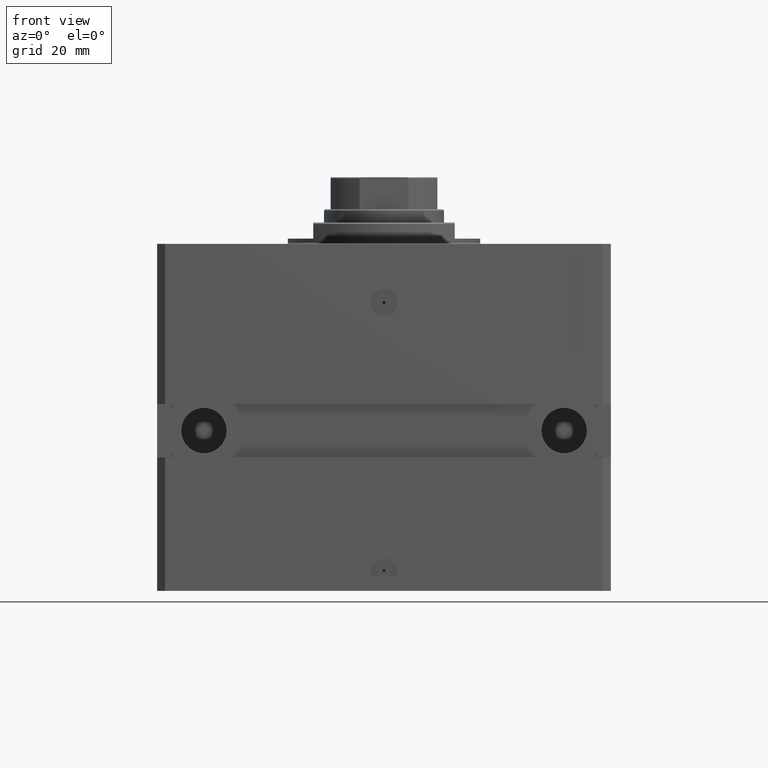
[diagram: clean part render]
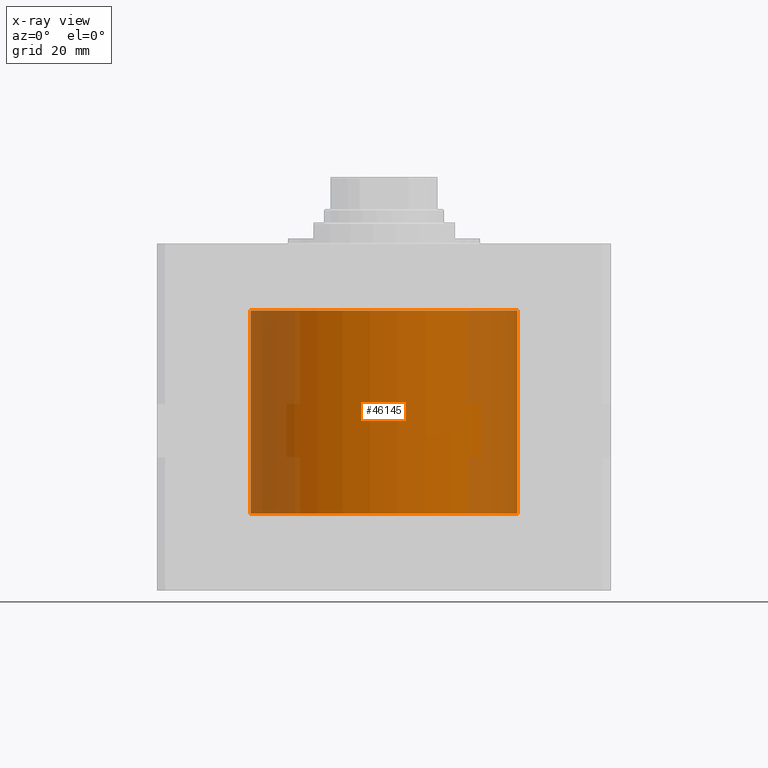
[diagram: x-ray — body ghosted, one internal face saturated and labeled with its STEP entity id]
A machine part, front view, then the same camera in x-ray: the body is ghosted and one INTERNAL B-rep face — a face not visible from any outside direction — is saturated and labeled: STEP entity #46145.
In plain terms, the highlighted cylindrical surface (partial cylindrical patch) has radius 50 mm, axis along (0, 0, 1).
Its self-contained STEP definition (entity closure, byte-faithful):
#131 = ORIENTED_EDGE ( 'NONE', *, *, #37198, .F. ) ;
#228 = CYLINDRICAL_SURFACE ( 'NONE', #11706, 50.00000000000000000 ) ;
#304 = DIRECTION ( 'NONE',  ( 1.000000000000000000, 0.000000000000000000, 0.000000000000000000 ) ) ;
#459 = FACE_OUTER_BOUND ( 'NONE', #5209, .T. ) ;
#972 = CIRCLE ( 'NONE', #36170, 50.00000000000000000 ) ;
#2208 = VERTEX_POINT ( 'NONE', #47808 ) ;
#3699 = ORIENTED_EDGE ( 'NONE', *, *, #46278, .F. ) ;
#3908 = CARTESIAN_POINT ( 'NONE',  ( 0.000000000000000000, 0.000000000000000000, -101.0999999999999943 ) ) ;
#4847 = CARTESIAN_POINT ( 'NONE',  ( 50.00000000000000000, 0.000000000000000000, -101.0999999999999943 ) ) ;
#5209 = EDGE_LOOP ( 'NONE', ( #131, #38452, #43548, #3699 ) ) ;
#7423 = VERTEX_POINT ( 'NONE', #22820 ) ;
#7826 = CARTESIAN_POINT ( 'NONE',  ( -50.00000000000000000, 6.123233995736764507E-15, -101.0999999999999943 ) ) ;
#11706 = AXIS2_PLACEMENT_3D ( 'NONE', #3908, #22030, #25700 ) ;
#14081 = VECTOR ( 'NONE', #19794, 1000.000000000000000 ) ;
#16238 = AXIS2_PLACEMENT_3D ( 'NONE', #44411, #43932, #17973 ) ;
#17386 = VERTEX_POINT ( 'NONE', #18013 ) ;
#17743 = EDGE_CURVE ( 'NONE', #17386, #7423, #972, .T. ) ;
#17763 = CIRCLE ( 'NONE', #16238, 50.00000000000000000 ) ;
#17973 = DIRECTION ( 'NONE',  ( 1.000000000000000000, 0.000000000000000000, 0.000000000000000000 ) ) ;
#18013 = CARTESIAN_POINT ( 'NONE',  ( -50.00000000000000000, 6.123233995736764507E-15, -24.99999999999999289 ) ) ;
#19794 = DIRECTION ( 'NONE',  ( -0.000000000000000000, -0.000000000000000000, 1.000000000000000000 ) ) ;
#21877 = VECTOR ( 'NONE', #22988, 1000.000000000000000 ) ;
#22030 = DIRECTION ( 'NONE',  ( -0.000000000000000000, -0.000000000000000000, 1.000000000000000000 ) ) ;
#22593 = CARTESIAN_POINT ( 'NONE',  ( 0.000000000000000000, 0.000000000000000000, -24.99999999999999289 ) ) ;
#22820 = CARTESIAN_POINT ( 'NONE',  ( 50.00000000000000000, 0.000000000000000000, -24.99999999999999289 ) ) ;
#22988 = DIRECTION ( 'NONE',  ( -0.000000000000000000, -0.000000000000000000, 1.000000000000000000 ) ) ;
#25700 = DIRECTION ( 'NONE',  ( 1.000000000000000000, 0.000000000000000000, 0.000000000000000000 ) ) ;
#33291 = LINE ( 'NONE', #7826, #21877 ) ;
#34971 = LINE ( 'NONE', #4847, #14081 ) ;
#35152 = CARTESIAN_POINT ( 'NONE',  ( -50.00000000000000000, 6.123233995736764507E-15, -101.0999999999999943 ) ) ;
#36170 = AXIS2_PLACEMENT_3D ( 'NONE', #22593, #37540, #304 ) ;
#37198 = EDGE_CURVE ( 'NONE', #45767, #2208, #17763, .T. ) ;
#37540 = DIRECTION ( 'NONE',  ( 0.000000000000000000, 0.000000000000000000, 1.000000000000000000 ) ) ;
#38452 = ORIENTED_EDGE ( 'NONE', *, *, #46117, .T. ) ;
#43548 = ORIENTED_EDGE ( 'NONE', *, *, #17743, .T. ) ;
#43932 = DIRECTION ( 'NONE',  ( 0.000000000000000000, 0.000000000000000000, 1.000000000000000000 ) ) ;
#44411 = CARTESIAN_POINT ( 'NONE',  ( 0.000000000000000000, 0.000000000000000000, -101.0999999999999943 ) ) ;
#45767 = VERTEX_POINT ( 'NONE', #35152 ) ;
#46117 = EDGE_CURVE ( 'NONE', #45767, #17386, #33291, .T. ) ;
#46145 = ADVANCED_FACE ( 'NONE', ( #459 ), #228, .F. ) ;
#46278 = EDGE_CURVE ( 'NONE', #2208, #7423, #34971, .T. ) ;
#47808 = CARTESIAN_POINT ( 'NONE',  ( 50.00000000000000000, 0.000000000000000000, -101.0999999999999943 ) ) ;